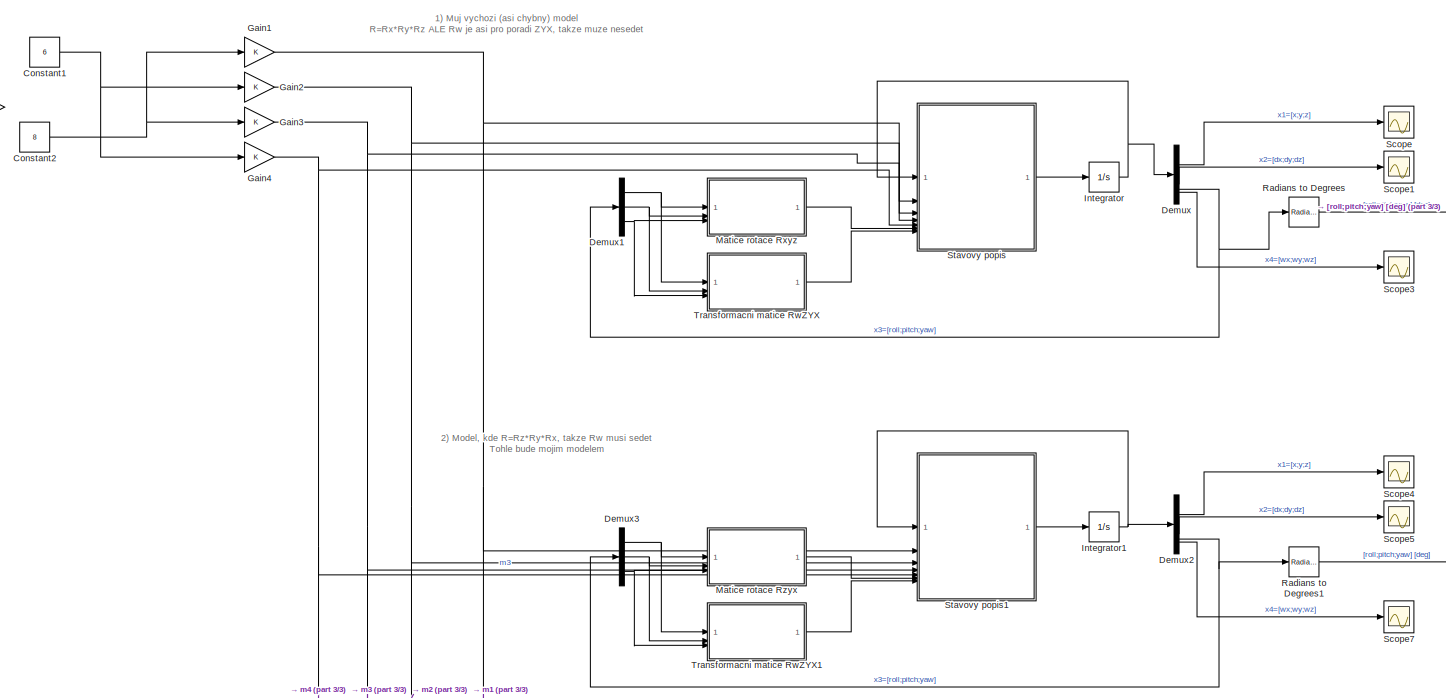
[diagram: root canvas - part 1/3, full width, middle band]
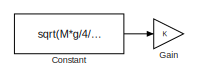
[diagram: root canvas - part 2/3, top left region]
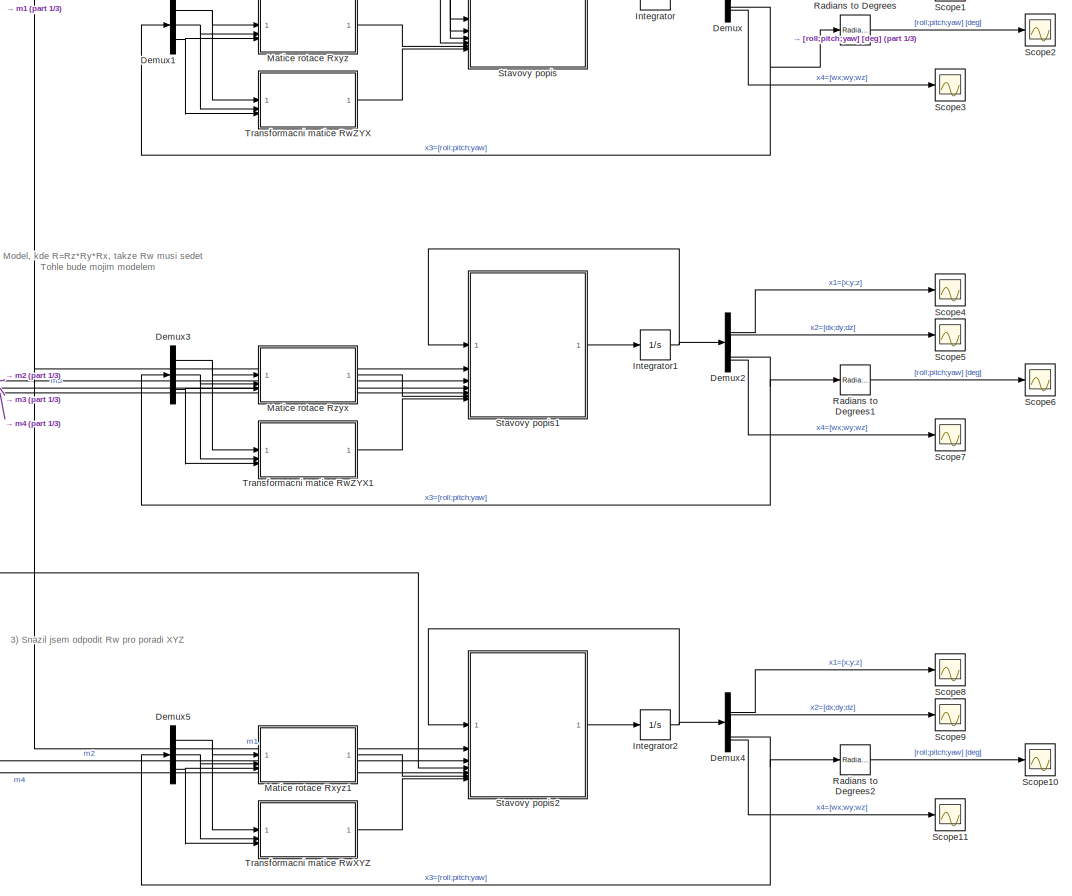
[diagram: root canvas - part 3/3, right side, full height]
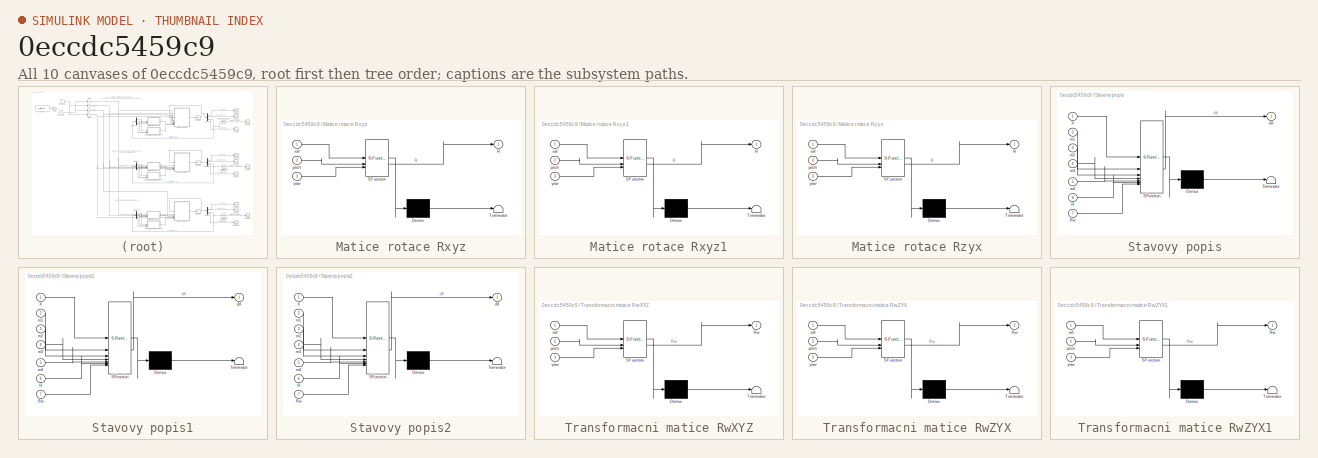
[diagram: thumbnail index - all 10 canvases of the model, root first then tree order]
MODEL slx_0eccdc5459c9
KIND model
CONFIG AbsTol = auto
CONFIG EnableMultiTasking = off
CONFIG FixedStep = auto
CONFIG MaxStep = auto
CONFIG MinStep = auto
CONFIG RelTol = 1e-3
CONFIG SampleTimeConstraint = Unconstrained
CONFIG SolverName = VariableStepAuto
CONFIG StartTime = 0.0
CONFIG StopTime = 2
BLOCK [Constant] Constant
  Value = sqrt(M*g/4/k_thrust)
BLOCK [Constant] Constant1
  Value = 6
BLOCK [Constant] Constant2
  Value = 8
BLOCK [Demux] Demux
BLOCK [Demux] Demux1
  Outputs = 3
BLOCK [Demux] Demux2
BLOCK [Demux] Demux3
  Outputs = 3
BLOCK [Demux] Demux4
BLOCK [Demux] Demux5
  Outputs = 3
BLOCK [Gain] Gain
BLOCK [Gain] Gain1
BLOCK [Gain] Gain2
BLOCK [Gain] Gain3
BLOCK [Gain] Gain4
BLOCK [Integrator] Integrator
  InitialCondition = Xinit
BLOCK [Integrator] Integrator1
  InitialCondition = Xinit
BLOCK [Integrator] Integrator2
  InitialCondition = Xinit
BLOCK [SubSystem] Matice rotace Rxyz
  ErrorFcn = Stateflow.Translate.translate
  PermitHierarchicalResolution = ExplicitOnly
  SFBlockType = MATLAB Function
  TreatAsAtomicUnit = on
BLOCK [Demux] Matice rotace Rxyz/ Demux 
  Outputs = 1
BLOCK [S-Function] Matice rotace Rxyz/ SFunction 
  EnableBusSupport = on
  FunctionName = sf_sfun
  PortCounts = [3 2]
  SFcnIsStateOwnerBlock = off
  SFunctionDeploymentMode = off
  Tag = Stateflow S-Function 1
BLOCK [Terminator] Matice rotace Rxyz/ Terminator 
BLOCK [Outport] Matice rotace Rxyz/R
BLOCK [Inport] Matice rotace Rxyz/pitch
  Port = 2
BLOCK [Inport] Matice rotace Rxyz/roll
BLOCK [Inport] Matice rotace Rxyz/yaw
  Port = 3
BLOCK [SubSystem] Matice rotace Rxyz1
  ErrorFcn = Stateflow.Translate.translate
  PermitHierarchicalResolution = ExplicitOnly
  SFBlockType = MATLAB Function
  TreatAsAtomicUnit = on
BLOCK [Demux] Matice rotace Rxyz1/ Demux 
  Outputs = 1
BLOCK [S-Function] Matice rotace Rxyz1/ SFunction 
  EnableBusSupport = on
  FunctionName = sf_sfun
  PortCounts = [3 2]
  SFcnIsStateOwnerBlock = off
  SFunctionDeploymentMode = off
  Tag = Stateflow S-Function 7
BLOCK [Terminator] Matice rotace Rxyz1/ Terminator 
BLOCK [Outport] Matice rotace Rxyz1/R
BLOCK [Inport] Matice rotace Rxyz1/pitch
  Port = 2
BLOCK [Inport] Matice rotace Rxyz1/roll
BLOCK [Inport] Matice rotace Rxyz1/yaw
  Port = 3
BLOCK [SubSystem] Matice rotace Rzyx
  ErrorFcn = Stateflow.Translate.translate
  PermitHierarchicalResolution = ExplicitOnly
  SFBlockType = MATLAB Function
  TreatAsAtomicUnit = on
BLOCK [Demux] Matice rotace Rzyx/ Demux 
  Outputs = 1
BLOCK [S-Function] Matice rotace Rzyx/ SFunction 
  EnableBusSupport = on
  FunctionName = sf_sfun
  PortCounts = [3 2]
  SFcnIsStateOwnerBlock = off
  SFunctionDeploymentMode = off
  Tag = Stateflow S-Function 4
BLOCK [Terminator] Matice rotace Rzyx/ Terminator 
BLOCK [Outport] Matice rotace Rzyx/R
BLOCK [Inport] Matice rotace Rzyx/pitch
  Port = 2
BLOCK [Inport] Matice rotace Rzyx/roll
BLOCK [Inport] Matice rotace Rzyx/yaw
  Port = 3
BLOCK [Reference] Radians to Degrees  REF=simulink_extras/Transformations/Radians
to Degrees
  SourceBlock = simulink_extras/Transformations/Radians\nto Degrees
  SourceType = RadiansToDegrees
BLOCK [Reference] Radians to Degrees1  REF=simulink_extras/Transformations/Radians
to Degrees
  SourceBlock = simulink_extras/Transformations/Radians\nto Degrees
  SourceType = RadiansToDegrees
BLOCK [Reference] Radians to Degrees2  REF=simulink_extras/Transformations/Radians
to Degrees
  SourceBlock = simulink_extras/Transformations/Radians\nto Degrees
  SourceType = RadiansToDegrees
BLOCK [Scope] Scope
  Floating = off
  NumInputPorts = 1
  ScopeSpecificationString = Simulink.scopes.TimeScopeBlockCfg('CurrentConfiguration', extmgr.ConfigurationSet(extmgr.Configuration('Core','General UI',true),extmgr.Configuration('Core','Source UI',true),extmgr.Configuration('Sources','WiredSimulink',true),extmgr.Configuration('Visuals','Time Domain',true,'SerializedDisplays',{struct('MinYLimReal','-8.41912','MaxYLimReal','0.93546','YLabelReal','','MinYLimMag','0.00000','MaxY...<+1528ch>
BLOCK [Scope] Scope1
  Floating = off
  NumInputPorts = 1
  ScopeSpecificationString = Simulink.scopes.TimeScopeBlockCfg('CurrentConfiguration', extmgr.ConfigurationSet(extmgr.Configuration('Core','General UI',true),extmgr.Configuration('Core','Source UI',true),extmgr.Configuration('Sources','WiredSimulink',true,'DataLoggingVariableName','ScopeData1'),extmgr.Configuration('Visuals','Time Domain',true,'SerializedDisplays',{struct('MinYLimReal','-0.000000000000039','MaxYLimReal','0.00...<+1602ch>
BLOCK [Scope] Scope10
  Floating = off
  NumInputPorts = 1
  ScopeSpecificationString = Simulink.scopes.TimeScopeBlockCfg('CurrentConfiguration', extmgr.ConfigurationSet(extmgr.Configuration('Core','General UI',true),extmgr.Configuration('Core','Source UI',true),extmgr.Configuration('Sources','WiredSimulink',true,'DataLoggingVariableName','ScopeData5'),extmgr.Configuration('Visuals','Time Domain',true,'SerializedDisplays',{struct('MinYLimReal','-2.01644','MaxYLimReal','18.14798','YLa...<+1608ch>
BLOCK [Scope] Scope11
  Floating = off
  NumInputPorts = 1
  ScopeSpecificationString = Simulink.scopes.TimeScopeBlockCfg('CurrentConfiguration', extmgr.ConfigurationSet(extmgr.Configuration('Core','General UI',true),extmgr.Configuration('Core','Source UI',true),extmgr.Configuration('Sources','WiredSimulink',true,'DataLoggingVariableName','ScopeData6'),extmgr.Configuration('Visuals','Time Domain',true,'SerializedDisplays',{struct('MinYLimReal','-15.8371','MaxYLimReal','1.75968','YLab...<+1527ch>
BLOCK [Scope] Scope2
  Floating = off
  NumInputPorts = 1
  ScopeSpecificationString = Simulink.scopes.TimeScopeBlockCfg('CurrentConfiguration', extmgr.ConfigurationSet(extmgr.Configuration('Core','General UI',true),extmgr.Configuration('Core','Source UI',true),extmgr.Configuration('Sources','WiredSimulink',true,'DataLoggingVariableName','ScopeData2'),extmgr.Configuration('Visuals','Time Domain',true,'SerializedDisplays',{struct('MinYLimReal','-2.01644','MaxYLimReal','18.14798','YLa...<+1607ch>
BLOCK [Scope] Scope3
  Floating = off
  NumInputPorts = 1
  ScopeSpecificationString = Simulink.scopes.TimeScopeBlockCfg('CurrentConfiguration', extmgr.ConfigurationSet(extmgr.Configuration('Core','General UI',true),extmgr.Configuration('Core','Source UI',true),extmgr.Configuration('Sources','WiredSimulink',true,'DataLoggingVariableName','ScopeData3'),extmgr.Configuration('Visuals','Time Domain',true,'SerializedDisplays',{struct('MinYLimReal','-15.8371','MaxYLimReal','1.75968','YLab...<+1526ch>
BLOCK [Scope] Scope4
  Floating = off
  NumInputPorts = 1
  ScopeSpecificationString = Simulink.scopes.TimeScopeBlockCfg('CurrentConfiguration', extmgr.ConfigurationSet(extmgr.Configuration('Core','General UI',true),extmgr.Configuration('Core','Source UI',true),extmgr.Configuration('Sources','WiredSimulink',true,'DataLoggingVariableName','ScopeData1'),extmgr.Configuration('Visuals','Time Domain',true,'SerializedDisplays',{struct('MinYLimReal','-8.41912','MaxYLimReal','0.93546','YLab...<+1568ch>
BLOCK [Scope] Scope5
  Floating = off
  NumInputPorts = 1
  ScopeSpecificationString = Simulink.scopes.TimeScopeBlockCfg('CurrentConfiguration', extmgr.ConfigurationSet(extmgr.Configuration('Core','General UI',true),extmgr.Configuration('Core','Source UI',true),extmgr.Configuration('Sources','WiredSimulink',true,'DataLoggingVariableName','ScopeData2'),extmgr.Configuration('Visuals','Time Domain',true,'SerializedDisplays',{struct('MinYLimReal','-0.000000000000039','MaxYLimReal','0.00...<+1602ch>
BLOCK [Scope] Scope6
  Floating = off
  NumInputPorts = 1
  ScopeSpecificationString = Simulink.scopes.TimeScopeBlockCfg('CurrentConfiguration', extmgr.ConfigurationSet(extmgr.Configuration('Core','General UI',true),extmgr.Configuration('Core','Source UI',true),extmgr.Configuration('Sources','WiredSimulink',true,'DataLoggingVariableName','ScopeData3'),extmgr.Configuration('Visuals','Time Domain',true,'SerializedDisplays',{struct('MinYLimReal','-2.01644','MaxYLimReal','18.14798','YLa...<+1607ch>
BLOCK [Scope] Scope7
  Floating = off
  NumInputPorts = 1
  ScopeSpecificationString = Simulink.scopes.TimeScopeBlockCfg('CurrentConfiguration', extmgr.ConfigurationSet(extmgr.Configuration('Core','General UI',true),extmgr.Configuration('Core','Source UI',true),extmgr.Configuration('Sources','WiredSimulink',true,'DataLoggingVariableName','ScopeData4'),extmgr.Configuration('Visuals','Time Domain',true,'SerializedDisplays',{struct('MinYLimReal','-15.8371','MaxYLimReal','1.75968','YLab...<+1526ch>
BLOCK [Scope] Scope8
  Floating = off
  NumInputPorts = 1
  ScopeSpecificationString = Simulink.scopes.TimeScopeBlockCfg('CurrentConfiguration', extmgr.ConfigurationSet(extmgr.Configuration('Core','General UI',true),extmgr.Configuration('Core','Source UI',true),extmgr.Configuration('Sources','WiredSimulink',true,'DataLoggingVariableName','ScopeData7'),extmgr.Configuration('Visuals','Time Domain',true,'SerializedDisplays',{struct('MinYLimReal','-8.41912','MaxYLimReal','0.93546','YLab...<+1569ch>
BLOCK [Scope] Scope9
  Floating = off
  NumInputPorts = 1
  ScopeSpecificationString = Simulink.scopes.TimeScopeBlockCfg('CurrentConfiguration', extmgr.ConfigurationSet(extmgr.Configuration('Core','General UI',true),extmgr.Configuration('Core','Source UI',true),extmgr.Configuration('Sources','WiredSimulink',true,'DataLoggingVariableName','ScopeData8'),extmgr.Configuration('Visuals','Time Domain',true,'SerializedDisplays',{struct('MinYLimReal','-0.000000000000039','MaxYLimReal','0.00...<+1602ch>
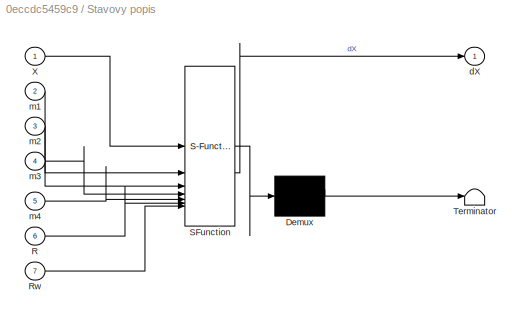
BLOCK [SubSystem] Stavovy popis
  ErrorFcn = Stateflow.Translate.translate
  PermitHierarchicalResolution = ExplicitOnly
  SFBlockType = MATLAB Function
  TreatAsAtomicUnit = on
BLOCK [Demux] Stavovy popis/ Demux 
  Outputs = 1
BLOCK [S-Function] Stavovy popis/ SFunction 
  EnableBusSupport = on
  FunctionName = sf_sfun
  Parameters = I,L,M,b_moment,g,k,k_thrust
  PortCounts = [7 2]
  SFcnIsStateOwnerBlock = off
  SFunctionDeploymentMode = off
  Tag = Stateflow S-Function 2
BLOCK [Terminator] Stavovy popis/ Terminator 
BLOCK [Inport] Stavovy popis/R
  Port = 6
BLOCK [Inport] Stavovy popis/Rw
  Port = 7
BLOCK [Inport] Stavovy popis/X
BLOCK [Outport] Stavovy popis/dX
BLOCK [Inport] Stavovy popis/m1
  Port = 2
BLOCK [Inport] Stavovy popis/m2
  Port = 3
BLOCK [Inport] Stavovy popis/m3
  Port = 4
BLOCK [Inport] Stavovy popis/m4
  Port = 5
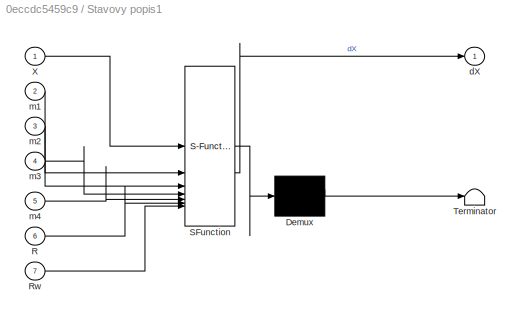
BLOCK [SubSystem] Stavovy popis1
  ErrorFcn = Stateflow.Translate.translate
  PermitHierarchicalResolution = ExplicitOnly
  SFBlockType = MATLAB Function
  TreatAsAtomicUnit = on
BLOCK [Demux] Stavovy popis1/ Demux 
  Outputs = 1
BLOCK [S-Function] Stavovy popis1/ SFunction 
  EnableBusSupport = on
  FunctionName = sf_sfun
  Parameters = I,L,M,b_moment,g,k,k_thrust
  PortCounts = [7 2]
  SFcnIsStateOwnerBlock = off
  SFunctionDeploymentMode = off
  Tag = Stateflow S-Function 5
BLOCK [Terminator] Stavovy popis1/ Terminator 
BLOCK [Inport] Stavovy popis1/R
  Port = 6
BLOCK [Inport] Stavovy popis1/Rw
  Port = 7
BLOCK [Inport] Stavovy popis1/X
BLOCK [Outport] Stavovy popis1/dX
BLOCK [Inport] Stavovy popis1/m1
  Port = 2
BLOCK [Inport] Stavovy popis1/m2
  Port = 3
BLOCK [Inport] Stavovy popis1/m3
  Port = 4
BLOCK [Inport] Stavovy popis1/m4
  Port = 5
BLOCK [SubSystem] Stavovy popis2
  ErrorFcn = Stateflow.Translate.translate
  PermitHierarchicalResolution = ExplicitOnly
  SFBlockType = MATLAB Function
  TreatAsAtomicUnit = on
BLOCK [Demux] Stavovy popis2/ Demux 
  Outputs = 1
BLOCK [S-Function] Stavovy popis2/ SFunction 
  EnableBusSupport = on
  FunctionName = sf_sfun
  Parameters = I,L,M,b_moment,g,k,k_thrust
  PortCounts = [7 2]
  SFcnIsStateOwnerBlock = off
  SFunctionDeploymentMode = off
  Tag = Stateflow S-Function 8
BLOCK [Terminator] Stavovy popis2/ Terminator 
BLOCK [Inport] Stavovy popis2/R
  Port = 6
BLOCK [Inport] Stavovy popis2/Rw
  Port = 7
BLOCK [Inport] Stavovy popis2/X
BLOCK [Outport] Stavovy popis2/dX
BLOCK [Inport] Stavovy popis2/m1
  Port = 2
BLOCK [Inport] Stavovy popis2/m2
  Port = 3
BLOCK [Inport] Stavovy popis2/m3
  Port = 4
BLOCK [Inport] Stavovy popis2/m4
  Port = 5
BLOCK [SubSystem] Transformacni matice RwXYZ
  ErrorFcn = Stateflow.Translate.translate
  PermitHierarchicalResolution = ExplicitOnly
  SFBlockType = MATLAB Function
  TreatAsAtomicUnit = on
BLOCK [Demux] Transformacni matice RwXYZ/ Demux 
  Outputs = 1
BLOCK [S-Function] Transformacni matice RwXYZ/ SFunction 
  EnableBusSupport = on
  FunctionName = sf_sfun
  PortCounts = [3 2]
  SFcnIsStateOwnerBlock = off
  SFunctionDeploymentMode = off
  Tag = Stateflow S-Function 9
BLOCK [Terminator] Transformacni matice RwXYZ/ Terminator 
BLOCK [Outport] Transformacni matice RwXYZ/Rw
BLOCK [Inport] Transformacni matice RwXYZ/pitch
  Port = 2
BLOCK [Inport] Transformacni matice RwXYZ/roll
BLOCK [Inport] Transformacni matice RwXYZ/yaw
  Port = 3
BLOCK [SubSystem] Transformacni matice RwZYX
  ErrorFcn = Stateflow.Translate.translate
  PermitHierarchicalResolution = ExplicitOnly
  SFBlockType = MATLAB Function
  TreatAsAtomicUnit = on
BLOCK [Demux] Transformacni matice RwZYX/ Demux 
  Outputs = 1
BLOCK [S-Function] Transformacni matice RwZYX/ SFunction 
  EnableBusSupport = on
  FunctionName = sf_sfun
  PortCounts = [3 2]
  SFcnIsStateOwnerBlock = off
  SFunctionDeploymentMode = off
  Tag = Stateflow S-Function 3
BLOCK [Terminator] Transformacni matice RwZYX/ Terminator 
BLOCK [Outport] Transformacni matice RwZYX/Rw
BLOCK [Inport] Transformacni matice RwZYX/pitch
  Port = 2
BLOCK [Inport] Transformacni matice RwZYX/roll
BLOCK [Inport] Transformacni matice RwZYX/yaw
  Port = 3
BLOCK [SubSystem] Transformacni matice RwZYX1
  ErrorFcn = Stateflow.Translate.translate
  PermitHierarchicalResolution = ExplicitOnly
  SFBlockType = MATLAB Function
  TreatAsAtomicUnit = on
BLOCK [Demux] Transformacni matice RwZYX1/ Demux 
  Outputs = 1
BLOCK [S-Function] Transformacni matice RwZYX1/ SFunction 
  EnableBusSupport = on
  FunctionName = sf_sfun
  PortCounts = [3 2]
  SFcnIsStateOwnerBlock = off
  SFunctionDeploymentMode = off
  Tag = Stateflow S-Function 6
BLOCK [Terminator] Transformacni matice RwZYX1/ Terminator 
BLOCK [Outport] Transformacni matice RwZYX1/Rw
BLOCK [Inport] Transformacni matice RwZYX1/pitch
  Port = 2
BLOCK [Inport] Transformacni matice RwZYX1/roll
BLOCK [Inport] Transformacni matice RwZYX1/yaw
  Port = 3
ANNOTATION (root): 2) Model, kde R=Rz*Ry*Rx, takze Rw musi sedet Tohle bude mojim modelem
ANNOTATION (root): 1) Muj vychozi (asi chybny) model R=Rx*Ry*Rz ALE Rw je asi pro poradi ZYX, takze muze nesedet
ANNOTATION (root): 3) Snazil jsem odpodit Rw pro poradi XYZ
NET Constant1:1 -> Gain2:1, Gain4:1
NET Constant2:1 -> Gain1:1, Gain3:1
LINE Constant:1 -> Gain:1
NET Demux1:1 -> Matice rotace Rxyz:1, Transformacni matice RwZYX:1
NET Demux1:2 -> Matice rotace Rxyz:2, Transformacni matice RwZYX:2
NET Demux1:3 -> Matice rotace Rxyz:3, Transformacni matice RwZYX:3
LINE Demux2:1 -> Scope4:1
LINE Demux2:2 -> Scope5:1
NET Demux2:3 -> Demux3:1, Radians to Degrees1:1
LINE Demux2:4 -> Scope7:1
NET Demux3:1 -> Matice rotace Rzyx:1, Transformacni matice RwZYX1:1
NET Demux3:2 -> Matice rotace Rzyx:2, Transformacni matice RwZYX1:2
NET Demux3:3 -> Matice rotace Rzyx:3, Transformacni matice RwZYX1:3
LINE Demux4:1 -> Scope8:1
LINE Demux4:2 -> Scope9:1
NET Demux4:3 -> Demux5:1, Radians to Degrees2:1
LINE Demux4:4 -> Scope11:1
NET Demux5:1 -> Matice rotace Rxyz1:1, Transformacni matice RwXYZ:1
NET Demux5:2 -> Matice rotace Rxyz1:2, Transformacni matice RwXYZ:2
NET Demux5:3 -> Matice rotace Rxyz1:3, Transformacni matice RwXYZ:3
LINE Demux:1 -> Scope:1
LINE Demux:2 -> Scope1:1
NET Demux:3 -> Demux1:1, Radians to Degrees:1
LINE Demux:4 -> Scope3:1
NET Gain1:1 -> Stavovy popis1:2, Stavovy popis2:2, Stavovy popis:2
NET Gain2:1 -> Stavovy popis1:3, Stavovy popis2:3, Stavovy popis:3
NET Gain3:1 -> Stavovy popis1:4, Stavovy popis2:4, Stavovy popis:4
NET Gain4:1 -> Stavovy popis1:5, Stavovy popis2:5, Stavovy popis:5
NET Integrator1:1 -> Demux2:1, Stavovy popis1:1
NET Integrator2:1 -> Demux4:1, Stavovy popis2:1
NET Integrator:1 -> Demux:1, Stavovy popis:1
LINE Matice rotace Rxyz1:1 -> Stavovy popis2:6
LINE Matice rotace Rxyz:1 -> Stavovy popis:6
LINE Matice rotace Rzyx:1 -> Stavovy popis1:6
LINE Radians to Degrees1:1 -> Scope6:1
LINE Radians to Degrees2:1 -> Scope10:1
LINE Radians to Degrees:1 -> Scope2:1
LINE Stavovy popis1:1 -> Integrator1:1
LINE Stavovy popis2:1 -> Integrator2:1
LINE Stavovy popis:1 -> Integrator:1
LINE Transformacni matice RwXYZ:1 -> Stavovy popis2:7
LINE Transformacni matice RwZYX1:1 -> Stavovy popis1:7
LINE Transformacni matice RwZYX:1 -> Stavovy popis:7
note: NET lines group one-source signal fan-out (src -> all destinations, sorted); 1:1 wires keep LINE
CHART Stavovy popis2 states=1 transitions=1
  STATE_LABEL 'eML_blk_kernel()'
  STATE_LABEL 'SCRIPT:\nfunction dX  = fcn(X, m1, m2, m3, m4, R, Rw, k_thrust, k, I, g, M, L, b_moment)\n% m1, m2, m3, m4 jsou odpovidajici uhlove rychlosti rotoru\n% Stavovy popis\n% x1 - pozice dronu v prostoru, [x;y;z]\n% x2 - linearni rychlost, [dx;dy;dz]\n% x3 - Eulerove uhly, [roll;pitch;yaw]\n% x4 - vektor uhlovych rychlosti, [wx;wy;wz]\nx1 = X(1:3);\nx2 = X(4:6);\nx3 = X(7:9);\nx4 = X(10:12);\n\nThrust = k_thrust*(m1...<+437ch>'  <repeated x3 — deduplicated; at blocks: Stavovy popis2, Stavovy popis, Stavovy popis1>
CHART Transformacni matice RwXYZ states=1 transitions=1
  STATE_LABEL 'eML_blk_kernel()'
  STATE_LABEL 'SCRIPT:\nfunction Rw = fcn(roll, pitch, yaw)\n% Prepocet matice pro transformace derivaci Eulerovych uhlu \n% do uhlove rychlosti v soustave tela ?\n\nRw = [cos(pitch)*cos(yaw), sin(yaw), 0;\n     -cos(pitch)*sin(yaw), cos(yaw), 0;\n      sin(pitch), 0, 1];'
CHART Matice rotace Rxyz states=1 transitions=1
  STATE_LABEL 'eML_blk_kernel()'
  STATE_LABEL 'SCRIPT:\nfunction R = fcn(roll, pitch, yaw)\n% Prepocet matice rotace R=Rx*Ry*Rz\n\nR_x = [1, 0, 0; \n       0, cos(roll), -sin(roll);\n       0, sin(roll), cos(roll)];\n\nR_y = [cos(pitch), 0, sin(pitch); \n       0, 1, 0; \n      -sin(pitch), 0, cos(pitch)];\n\nR_z = [cos(yaw), -sin(yaw), 0; \n       sin(yaw), cos(yaw), 0; \n       0, 0, 1];\n\nR = R_x * R_y * R_z;\n'
CHART Stavovy popis states=1 transitions=1
  STATE_LABEL 'eML_blk_kernel()'
CHART Transformacni matice RwZYX states=1 transitions=1
  STATE_LABEL 'eML_blk_kernel()'
  STATE_LABEL 'SCRIPT:\nfunction Rw = fcn(roll, pitch, yaw)\n% Prepocet matice pro transformace derivaci Eulerovych uhlu \n% do uhlove rychlosti v soustave tela ?\nRw = [1, 0, -sin(pitch);\n      0, cos(roll), cos(pitch)*sin(roll);\n      0 -sin(roll), cos(pitch)*cos(roll)];\n'
CHART Matice rotace Rzyx states=1 transitions=1
  STATE_LABEL 'eML_blk_kernel()'
  STATE_LABEL 'SCRIPT:\nfunction R = fcn(roll, pitch, yaw)\n% Prepocet matice rotace R=Rx*Ry*Rz\n\nR_x = [1, 0, 0; \n       0, cos(roll), -sin(roll);\n       0, sin(roll), cos(roll)];\n\nR_y = [cos(pitch), 0, sin(pitch); \n       0, 1, 0; \n      -sin(pitch), 0, cos(pitch)];\n\nR_z = [cos(yaw), -sin(yaw), 0; \n       sin(yaw), cos(yaw), 0; \n       0, 0, 1];\n\nR = R_z * R_y * R_x;\n'
CHART Stavovy popis1 states=1 transitions=1
  STATE_LABEL 'eML_blk_kernel()'
CHART Transformacni matice RwZYX1 states=1 transitions=1
  STATE_LABEL 'eML_blk_kernel()'
  STATE_LABEL 'SCRIPT:\nfunction Rw = fcn(roll, pitch, yaw)\n% Prepocet matice pro transformace derivaci Eulerovych uhlu \n% do uhlove rychlosti v soustave tela ?\nRw = [1, 0, -sin(pitch);\n      0, cos(roll), cos(pitch)*sin(roll);\n      0 -sin(roll), cos(pitch)*cos(roll)];\n'
CHART Matice rotace Rxyz1 states=1 transitions=1
  STATE_LABEL 'eML_blk_kernel()'
  STATE_LABEL 'SCRIPT:\nfunction R = fcn(roll, pitch, yaw)\n% Prepocet matice rotace R=Rx*Ry*Rz\n\nR_x = [1, 0, 0; \n       0, cos(roll), -sin(roll);\n       0, sin(roll), cos(roll)];\n\nR_y = [cos(pitch), 0, sin(pitch); \n       0, 1, 0; \n      -sin(pitch), 0, cos(pitch)];\n\nR_z = [cos(yaw), -sin(yaw), 0; \n       sin(yaw), cos(yaw), 0; \n       0, 0, 1];\n\nR = R_x * R_y * R_z;\n'
CHART  states=0 transitions=0
CHART  states=0 transitions=0
CHART  states=0 transitions=0
CHART  states=0 transitions=0
CHART  states=0 transitions=0
CHART  states=0 transitions=0
CHART  states=0 transitions=0
CHART  states=0 transitions=0
CHART  states=0 transitions=0
